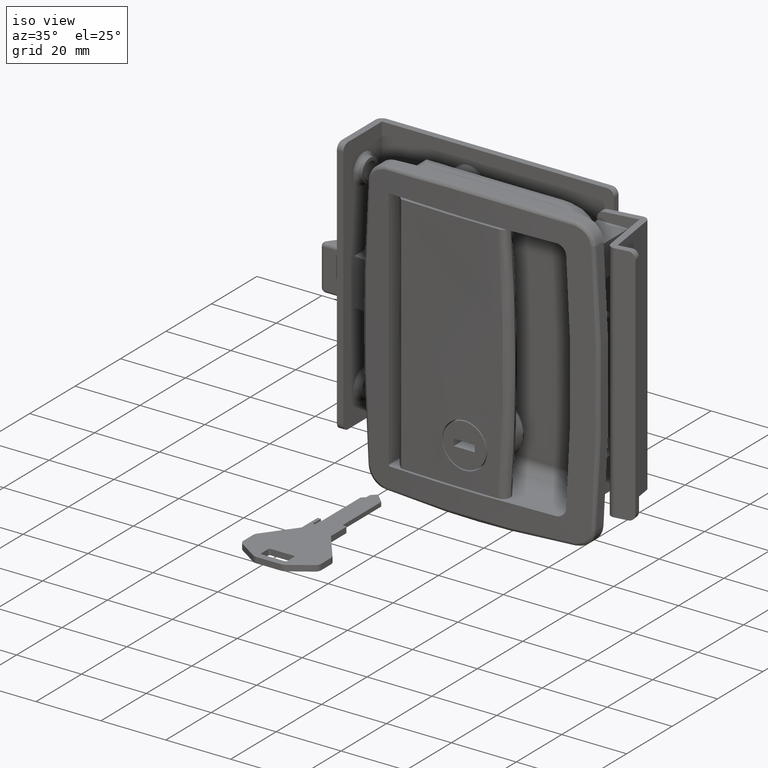
[diagram: clean part render]
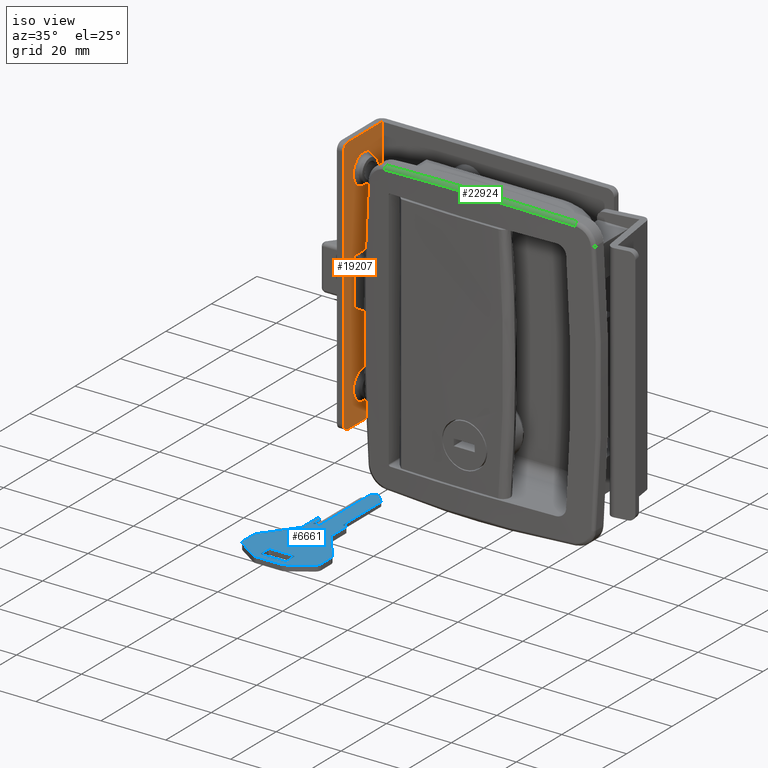
[diagram: same view with three faces highlighted in distinct colors, each labeled with its STEP entity id]
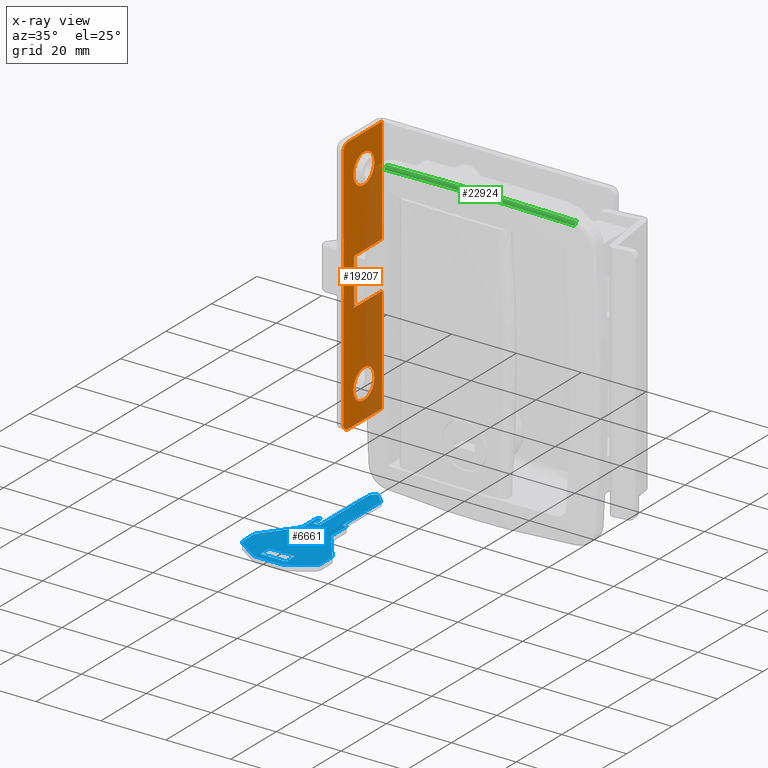
[diagram: x-ray of the same camera — body ghosted, the three highlighted faces saturated]
A machine part, iso view with three faces highlighted in distinct colors.
The next image is the same camera in x-ray (body ghosted, the three faces saturated) — at least one of them is partly hidden behind the body in this view.
Their STEP definitions:

[orange] entity #19207 — the highlighted face is a freeform B-spline surface patch.
#14870=CARTESIAN_POINT('',(2.000000000014888,-5.401452731472784,30.115598441933631));
#14871=VERTEX_POINT('',#14870);
#14885=CARTESIAN_POINT('',(2.000000000059545,-10.000000000235520,34.599999999503709));
#14886=VERTEX_POINT('',#14885);
#14887=CARTESIAN_POINT('',(2.000000000014887,-5.401452731472784,30.115598441933631));
#14888=CARTESIAN_POINT('',(2.000000000059544,-5.514181776249780,34.599999999503709));
#14889=CARTESIAN_POINT('',(2.000000000059545,-10.000000000235520,34.599999999503709));
#14897=(BOUNDED_CURVE()B_SPLINE_CURVE(2,(#14887,#14888,#14889),.UNSPECIFIED.,.F.,.U.)B_SPLINE_CURVE_WITH_KNOTS((3,3),(0.754420108471279,1.0),.UNSPECIFIED.)CURVE()GEOMETRIC_REPRESENTATION_ITEM()RATIONAL_B_SPLINE_CURVE((0.989826157136652,0.712285260377177,1.0))REPRESENTATION_ITEM(''));
#14898=EDGE_CURVE('',#14871,#14886,#14897,.T.);
#14900=CARTESIAN_POINT('',(2.000000000014888,-14.598547268998260,29.884401557612570));
#14901=VERTEX_POINT('',#14900);
#14902=CARTESIAN_POINT('',(2.000000000059545,-10.000000000235520,34.599999999503709));
#14903=CARTESIAN_POINT('',(2.000000000059545,-14.599999999966125,34.599999999503716));
#14904=CARTESIAN_POINT('',(2.000000000059545,-14.599999999966130,29.999999999773099));
#14905=CARTESIAN_POINT('',(2.000000000059545,-14.599999999966133,29.942191648839483));
#14906=CARTESIAN_POINT('',(2.000000000014888,-14.598547268998258,29.884401557612566));
#14914=(BOUNDED_CURVE()B_SPLINE_CURVE(2,(#14902,#14903,#14904,#14905,#14906),.UNSPECIFIED.,.F.,.U.)B_SPLINE_CURVE_WITH_KNOTS((3,2,3),(0.0,0.250000000000000,0.254420108471278),.UNSPECIFIED.)CURVE()GEOMETRIC_REPRESENTATION_ITEM()RATIONAL_B_SPLINE_CURVE((1.0,0.707106781186548,1.0,0.994821520809371,0.989826157136652))REPRESENTATION_ITEM(''));
#14915=EDGE_CURVE('',#14886,#14901,#14914,.T.);
#14959=CARTESIAN_POINT('',(2.000000000059545,-10.000000000235520,25.400000000042489));
#14960=VERTEX_POINT('',#14959);
#14961=CARTESIAN_POINT('',(2.000000000014888,-14.598547268998260,29.884401557612563));
#14962=CARTESIAN_POINT('',(2.000000000059545,-14.485818224221264,25.400000000042482));
#14963=CARTESIAN_POINT('',(2.000000000059545,-10.000000000235520,25.400000000042489));
#14971=(BOUNDED_CURVE()B_SPLINE_CURVE(2,(#14961,#14962,#14963),.UNSPECIFIED.,.F.,.U.)B_SPLINE_CURVE_WITH_KNOTS((3,3),(0.254420108471279,0.500000000000000),.UNSPECIFIED.)CURVE()GEOMETRIC_REPRESENTATION_ITEM()RATIONAL_B_SPLINE_CURVE((0.989826157136652,0.712285260377177,1.0))REPRESENTATION_ITEM(''));
#14972=EDGE_CURVE('',#14901,#14960,#14971,.T.);
#14974=CARTESIAN_POINT('',(2.000000000059545,-10.000000000235520,25.400000000042489));
#14975=CARTESIAN_POINT('',(2.000000000059545,-5.400000000504910,25.400000000042485));
#14976=CARTESIAN_POINT('',(2.000000000059545,-5.400000000504909,29.999999999773099));
#14977=CARTESIAN_POINT('',(2.000000000059545,-5.400000000504910,30.057808350706715));
#14978=CARTESIAN_POINT('',(2.000000000014888,-5.401452731472784,30.115598441933624));
#14986=(BOUNDED_CURVE()B_SPLINE_CURVE(2,(#14974,#14975,#14976,#14977,#14978),.UNSPECIFIED.,.F.,.U.)B_SPLINE_CURVE_WITH_KNOTS((3,2,3),(0.500000000000000,0.750000000000000,0.754420108471278),.UNSPECIFIED.)CURVE()GEOMETRIC_REPRESENTATION_ITEM()RATIONAL_B_SPLINE_CURVE((1.0,0.707106781186548,1.0,0.994821520809371,0.989826157136652))REPRESENTATION_ITEM(''));
#14987=EDGE_CURVE('',#14960,#14871,#14986,.T.);
#15027=CARTESIAN_POINT('',(2.000000000059545,-5.400000026631203,-30.000000000226951));
#15028=VERTEX_POINT('',#15027);
#15042=CARTESIAN_POINT('',(2.000000000059545,-10.000000000235520,-25.400000000496341));
#15043=VERTEX_POINT('',#15042);
#15044=CARTESIAN_POINT('',(2.000000000059545,-5.400000026631203,-30.000000000226951));
#15045=CARTESIAN_POINT('',(2.000000000059545,-5.400000000504910,-25.400000000496334));
#15046=CARTESIAN_POINT('',(2.000000000059545,-10.000000000235520,-25.400000000496341));
#15054=(BOUNDED_CURVE()B_SPLINE_CURVE(2,(#15044,#15045,#15046),.UNSPECIFIED.,.F.,.U.)B_SPLINE_CURVE_WITH_KNOTS((3,3),(0.750000000000000,1.0),.UNSPECIFIED.)CURVE()GEOMETRIC_REPRESENTATION_ITEM()RATIONAL_B_SPLINE_CURVE((1.0,0.707106781186548,1.0))REPRESENTATION_ITEM(''));
#15055=EDGE_CURVE('',#15028,#15043,#15054,.T.);
#15057=CARTESIAN_POINT('',(2.000000000059546,-14.569233510694760,-30.531135461359561));
#15058=VERTEX_POINT('',#15057);
#15059=CARTESIAN_POINT('',(2.000000000059545,-10.000000000235520,-25.400000000496341));
#15060=CARTESIAN_POINT('',(2.000000000059545,-14.599999999966125,-25.400000000496334));
#15061=CARTESIAN_POINT('',(2.000000000059545,-14.599999999966130,-30.000000000226951));
#15062=CARTESIAN_POINT('',(2.000000000059545,-14.599999999966128,-30.266458823507048));
#15063=CARTESIAN_POINT('',(2.000000000059546,-14.569233510694760,-30.531135461359565));
#15071=(BOUNDED_CURVE()B_SPLINE_CURVE(2,(#15059,#15060,#15061,#15062,#15063),.UNSPECIFIED.,.F.,.U.)B_SPLINE_CURVE_WITH_KNOTS((3,2,3),(0.0,0.250000000000000,0.270000000692351),.UNSPECIFIED.)CURVE()GEOMETRIC_REPRESENTATION_ITEM()RATIONAL_B_SPLINE_CURVE((1.0,0.707106781186548,1.0,0.976568541683784,0.956886116827945))REPRESENTATION_ITEM(''));
#15072=EDGE_CURVE('',#15043,#15058,#15071,.T.);
#15116=CARTESIAN_POINT('',(2.000000000059545,-10.000000000235520,-34.599999999957561));
#15117=VERTEX_POINT('',#15116);
#15118=CARTESIAN_POINT('',(2.000000000059545,-14.569233510694763,-30.531135461359561));
#15119=CARTESIAN_POINT('',(2.000000000059545,-14.096261806920712,-34.599999999957568));
#15120=CARTESIAN_POINT('',(2.000000000059545,-10.000000000235520,-34.599999999957561));
#15128=(BOUNDED_CURVE()B_SPLINE_CURVE(2,(#15118,#15119,#15120),.UNSPECIFIED.,.F.,.U.)B_SPLINE_CURVE_WITH_KNOTS((3,3),(0.270000000692351,0.500000000000000),.UNSPECIFIED.)CURVE()GEOMETRIC_REPRESENTATION_ITEM()RATIONAL_B_SPLINE_CURVE((0.956886116827945,0.730538239502764,1.0))REPRESENTATION_ITEM(''));
#15129=EDGE_CURVE('',#15058,#15117,#15128,.T.);
#15131=CARTESIAN_POINT('',(2.000000000059545,-10.000000000235520,-34.599999999957561));
#15132=CARTESIAN_POINT('',(2.000000000059545,-5.400000000504933,-34.599999999957568));
#15133=CARTESIAN_POINT('',(2.000000000059545,-5.400000026631203,-30.000000000226951));
#15141=(BOUNDED_CURVE()B_SPLINE_CURVE(2,(#15131,#15132,#15133),.UNSPECIFIED.,.F.,.U.)B_SPLINE_CURVE_WITH_KNOTS((3,3),(0.500000000000000,0.749999999999999),.UNSPECIFIED.)CURVE()GEOMETRIC_REPRESENTATION_ITEM()RATIONAL_B_SPLINE_CURVE((1.0,0.707106781186549,0.999999999999998))REPRESENTATION_ITEM(''));
#15142=EDGE_CURVE('',#15117,#15028,#15141,.T.);
#18462=CARTESIAN_POINT('',(2.000000000059545,-14.200000000010800,-7.200000000056770));
#18463=VERTEX_POINT('',#18462);
#18469=CARTESIAN_POINT('',(1.999999999940455,-12.199999999999720,-7.200000000058380));
#18470=VERTEX_POINT('',#18469);
#18471=CARTESIAN_POINT('',(2.000000000059545,-14.200000000010800,-7.200000000056770));
#18472=CARTESIAN_POINT('',(1.999999999940455,-12.199999999999720,-7.200000000058380));
#18473=QUASI_UNIFORM_CURVE('',1,(#18471,#18472),.UNSPECIFIED.,.F.,.U.);
#18474=EDGE_CURVE('',#18463,#18470,#18473,.T.);
#18511=CARTESIAN_POINT('',(1.999999999940495,-14.199999999989300,7.200000000050660));
#18512=VERTEX_POINT('',#18511);
#18513=CARTESIAN_POINT('',(2.000000000059545,-12.199999999999720,7.200000000050610));
#18514=VERTEX_POINT('',#18513);
#18515=CARTESIAN_POINT('',(1.999999999940495,-14.199999999989300,7.200000000050660));
#18516=CARTESIAN_POINT('',(2.000000000059545,-12.199999999999720,7.200000000050610));
#18517=QUASI_UNIFORM_CURVE('',1,(#18515,#18516),.UNSPECIFIED.,.F.,.U.);
#18518=EDGE_CURVE('',#18512,#18514,#18517,.T.);
#18569=CARTESIAN_POINT('',(1.999999999940495,-14.199999999989300,7.200000000050660));
#18570=CARTESIAN_POINT('',(2.000000000059545,-14.200000000010800,-7.200000000056770));
#18571=QUASI_UNIFORM_CURVE('',1,(#18569,#18570),.UNSPECIFIED.,.F.,.U.);
#18572=EDGE_CURVE('',#18512,#18463,#18571,.T.);
#18671=CARTESIAN_POINT('',(1.999999999940455,-1.999999999999885,7.200000000050660));
#18672=VERTEX_POINT('',#18671);
#18685=CARTESIAN_POINT('',(1.999999999940455,-1.999999999999885,-7.200000000066281));
#18686=VERTEX_POINT('',#18685);
#18706=CARTESIAN_POINT('',(1.999999999940455,-12.199999999999720,-7.200000000058380));
#18707=CARTESIAN_POINT('',(1.999999999940455,-1.999999999999885,-7.200000000066281));
#18708=QUASI_UNIFORM_CURVE('',1,(#18706,#18707),.UNSPECIFIED.,.F.,.U.);
#18709=EDGE_CURVE('',#18470,#18686,#18708,.T.);
#18762=CARTESIAN_POINT('',(2.000000000059545,-12.199999999999720,7.200000000050610));
#18763=CARTESIAN_POINT('',(1.999999999940455,-1.999999999999885,7.200000000050660));
#18764=QUASI_UNIFORM_CURVE('',1,(#18762,#18763),.UNSPECIFIED.,.F.,.U.);
#18765=EDGE_CURVE('',#18514,#18672,#18764,.T.);
#18942=CARTESIAN_POINT('',(2.000000000059545,-16.999999999999751,40.000000000094047));
#18943=VERTEX_POINT('',#18942);
#18944=CARTESIAN_POINT('',(2.000000000059545,-19.0,38.000000000094047));
#18945=VERTEX_POINT('',#18944);
#18946=CARTESIAN_POINT('',(2.000000000059545,-16.999999999999751,40.000000000094047));
#18947=CARTESIAN_POINT('',(2.000000000059545,-18.999999999999755,40.000000000094055));
#18948=CARTESIAN_POINT('',(2.000000000059545,-19.0,38.000000000094047));
#18956=(BOUNDED_CURVE()B_SPLINE_CURVE(2,(#18946,#18947,#18948),.UNSPECIFIED.,.F.,.U.)CURVE()GEOMETRIC_REPRESENTATION_ITEM()QUASI_UNIFORM_CURVE()RATIONAL_B_SPLINE_CURVE((1.0,0.707106781186548,1.0))REPRESENTATION_ITEM(''));
#18957=EDGE_CURVE('',#18943,#18945,#18956,.T.);
#19003=CARTESIAN_POINT('',(2.000000000059545,-19.0,-37.999999999905903));
#19004=VERTEX_POINT('',#19003);
#19005=CARTESIAN_POINT('',(2.000000000059545,-16.999999999999751,-39.999999999905853));
#19006=VERTEX_POINT('',#19005);
#19007=CARTESIAN_POINT('',(2.000000000059545,-19.0,-37.999999999905903));
#19008=CARTESIAN_POINT('',(2.000000000059545,-18.999999999999755,-39.999999999905853));
#19009=CARTESIAN_POINT('',(2.000000000059545,-16.999999999999751,-39.999999999905853));
#19017=(BOUNDED_CURVE()B_SPLINE_CURVE(2,(#19007,#19008,#19009),.UNSPECIFIED.,.F.,.U.)CURVE()GEOMETRIC_REPRESENTATION_ITEM()QUASI_UNIFORM_CURVE()RATIONAL_B_SPLINE_CURVE((1.0,0.707106781186548,1.0))REPRESENTATION_ITEM(''));
#19018=EDGE_CURVE('',#19004,#19006,#19017,.T.);
#19063=CARTESIAN_POINT('',(2.000000000059545,-1.999999999999885,-39.999999999905903));
#19064=VERTEX_POINT('',#19063);
#19070=CARTESIAN_POINT('',(2.000000000059545,-1.999999999999885,-39.999999999905903));
#19071=CARTESIAN_POINT('',(2.000000000059545,-16.999999999999751,-39.999999999905853));
#19072=QUASI_UNIFORM_CURVE('',1,(#19070,#19071),.UNSPECIFIED.,.F.,.U.);
#19073=EDGE_CURVE('',#19064,#19006,#19072,.T.);
#19104=CARTESIAN_POINT('',(2.000000000059545,-1.999999999999885,40.000000000094047));
#19105=VERTEX_POINT('',#19104);
#19140=CARTESIAN_POINT('',(2.000000000059545,-1.999999999999885,40.000000000094047));
#19141=CARTESIAN_POINT('',(2.000000000059545,-16.999999999999751,40.000000000094047));
#19142=QUASI_UNIFORM_CURVE('',1,(#19140,#19141),.UNSPECIFIED.,.F.,.U.);
#19143=EDGE_CURVE('',#19105,#18943,#19142,.T.);
#19159=CARTESIAN_POINT('',(2.000000000059545,-19.0,38.000000000094047));
#19160=CARTESIAN_POINT('',(2.000000000059545,-19.0,-37.999999999905903));
#19161=QUASI_UNIFORM_CURVE('',1,(#19159,#19160),.UNSPECIFIED.,.F.,.U.);
#19162=EDGE_CURVE('',#18945,#19004,#19161,.T.);
#19168=CARTESIAN_POINT('',(2.000000000059545,-19.849149967050710,43.995999845038533));
#19169=CARTESIAN_POINT('',(2.000000000059545,-19.849149967050710,-43.996001990617593));
#19170=CARTESIAN_POINT('',(2.000000000059545,-1.150849576973646,43.995999845038533));
#19171=CARTESIAN_POINT('',(2.000000000059545,-1.150849576973646,-43.996001990617593));
#19172=B_SPLINE_SURFACE_WITH_KNOTS('',1,1,((#19168,#19170),(#19169,#19171)),.UNSPECIFIED.,.F.,.F.,.U.,(2,2),(2,2),(0.0,87.992001835656112),(0.0,18.698300390077058),.UNSPECIFIED.);
#19173=ORIENTED_EDGE('',*,*,#18572,.F.);
#19174=ORIENTED_EDGE('',*,*,#18518,.T.);
#19175=ORIENTED_EDGE('',*,*,#18765,.T.);
#19176=CARTESIAN_POINT('',(2.000000000059545,-1.999999999999885,40.000000000094047));
#19177=CARTESIAN_POINT('',(1.999999999940455,-1.999999999999885,7.200000000050660));
#19178=QUASI_UNIFORM_CURVE('',1,(#19176,#19177),.UNSPECIFIED.,.F.,.U.);
#19179=EDGE_CURVE('',#19105,#18672,#19178,.T.);
#19180=ORIENTED_EDGE('',*,*,#19179,.F.);
#19181=ORIENTED_EDGE('',*,*,#19143,.T.);
#19182=ORIENTED_EDGE('',*,*,#18957,.T.);
#19183=ORIENTED_EDGE('',*,*,#19162,.T.);
#19184=ORIENTED_EDGE('',*,*,#19018,.T.);
#19185=ORIENTED_EDGE('',*,*,#19073,.F.);
#19186=CARTESIAN_POINT('',(1.999999999940455,-1.999999999999885,-7.200000000066281));
#19187=CARTESIAN_POINT('',(2.000000000059545,-1.999999999999885,-39.999999999905903));
#19188=QUASI_UNIFORM_CURVE('',1,(#19186,#19187),.UNSPECIFIED.,.F.,.U.);
#19189=EDGE_CURVE('',#18686,#19064,#19188,.T.);
#19190=ORIENTED_EDGE('',*,*,#19189,.F.);
#19191=ORIENTED_EDGE('',*,*,#18709,.F.);
#19192=ORIENTED_EDGE('',*,*,#18474,.F.);
#19193=EDGE_LOOP('',(#19173,#19174,#19175,#19180,#19181,#19182,#19183,#19184,#19185,#19190,#19191,#19192));
#19194=FACE_OUTER_BOUND('',#19193,.T.);
#19195=ORIENTED_EDGE('',*,*,#15142,.F.);
#19196=ORIENTED_EDGE('',*,*,#15129,.F.);
#19197=ORIENTED_EDGE('',*,*,#15072,.F.);
#19198=ORIENTED_EDGE('',*,*,#15055,.F.);
#19199=EDGE_LOOP('',(#19195,#19196,#19197,#19198));
#19200=FACE_BOUND('',#19199,.T.);
#19201=ORIENTED_EDGE('',*,*,#14987,.F.);
#19202=ORIENTED_EDGE('',*,*,#14972,.F.);
#19203=ORIENTED_EDGE('',*,*,#14915,.F.);
#19204=ORIENTED_EDGE('',*,*,#14898,.F.);
#19205=EDGE_LOOP('',(#19201,#19202,#19203,#19204));
#19206=FACE_BOUND('',#19205,.T.);
#19207=ADVANCED_FACE('',(#19194,#19200,#19206),#19172,.T.);

[blue] entity #6661 — the highlighted face is a freeform B-spline surface patch.
#5857=CARTESIAN_POINT('',(46.000000000371202,44.749999999533102,-24.600000000333001));
#5858=VERTEX_POINT('',#5857);
#5874=CARTESIAN_POINT('',(48.000000000371102,44.749999999533102,-24.600000000333001));
#5875=VERTEX_POINT('',#5874);
#5876=CARTESIAN_POINT('',(46.000000000371202,44.749999999533102,-24.600000000333001));
#5877=CARTESIAN_POINT('',(48.000000000371102,44.749999999533102,-24.600000000333001));
#5878=QUASI_UNIFORM_CURVE('',1,(#5876,#5877),.UNSPECIFIED.,.F.,.U.);
#5879=EDGE_CURVE('',#5858,#5875,#5878,.T.);
#5951=CARTESIAN_POINT('',(46.000000000372097,48.249999999536300,-24.600000000332901));
#5952=VERTEX_POINT('',#5951);
#5953=CARTESIAN_POINT('',(46.000000000372097,48.249999999536300,-24.600000000332901));
#5954=CARTESIAN_POINT('',(46.000000000371202,44.749999999533102,-24.600000000333001));
#5955=QUASI_UNIFORM_CURVE('',1,(#5953,#5954),.UNSPECIFIED.,.F.,.U.);
#5956=EDGE_CURVE('',#5952,#5858,#5955,.T.);
#5975=CARTESIAN_POINT('',(48.000000000371102,66.957106780720807,-24.600000000333001));
#5976=VERTEX_POINT('',#5975);
#5977=CARTESIAN_POINT('',(48.000000000371102,44.749999999533102,-24.600000000333001));
#5978=CARTESIAN_POINT('',(48.000000000371102,66.957106780720807,-24.600000000333001));
#5979=QUASI_UNIFORM_CURVE('',1,(#5977,#5978),.UNSPECIFIED.,.F.,.U.);
#5980=EDGE_CURVE('',#5875,#5976,#5979,.T.);
#6326=CARTESIAN_POINT('',(36.301200046888042,70.647599906497987,-24.600000000332951));
#6327=CARTESIAN_POINT('',(62.698800597585013,70.647599906497987,-24.600000000332951));
#6328=CARTESIAN_POINT('',(36.301200046888042,17.852398805109260,-24.600000000332951));
#6329=CARTESIAN_POINT('',(62.698800597585013,17.852398805109260,-24.600000000332951));
#6330=B_SPLINE_SURFACE_WITH_KNOTS('',1,1,((#6326,#6328),(#6327,#6329)),.UNSPECIFIED.,.F.,.F.,.U.,(2,2),(2,2),(0.0,26.397600550696961),(0.0,52.795201101388727),.UNSPECIFIED.);
#6331=ORIENTED_EDGE('',*,*,#5980,.F.);
#6332=ORIENTED_EDGE('',*,*,#5879,.F.);
#6333=ORIENTED_EDGE('',*,*,#5956,.F.);
#6334=CARTESIAN_POINT('',(45.300000000371398,48.249999999536101,-24.600000000332901));
#6335=VERTEX_POINT('',#6334);
#6336=CARTESIAN_POINT('',(45.300000000371398,48.249999999536101,-24.600000000332901));
#6337=CARTESIAN_POINT('',(46.000000000372097,48.249999999536300,-24.600000000332901));
#6338=QUASI_UNIFORM_CURVE('',1,(#6336,#6337),.UNSPECIFIED.,.F.,.U.);
#6339=EDGE_CURVE('',#6335,#5952,#6338,.T.);
#6340=ORIENTED_EDGE('',*,*,#6339,.F.);
#6341=CARTESIAN_POINT('',(45.000000000371500,47.949999999536203,-24.600000000332901));
#6342=VERTEX_POINT('',#6341);
#6343=CARTESIAN_POINT('',(45.300000000371398,48.249999999536101,-24.600000000332901));
#6344=CARTESIAN_POINT('',(45.000000000371394,48.249999999536101,-24.600000000332908));
#6345=CARTESIAN_POINT('',(45.000000000371500,47.949999999536203,-24.600000000332901));
#6353=(BOUNDED_CURVE()B_SPLINE_CURVE(2,(#6343,#6344,#6345),.UNSPECIFIED.,.F.,.U.)CURVE()GEOMETRIC_REPRESENTATION_ITEM()QUASI_UNIFORM_CURVE()RATIONAL_B_SPLINE_CURVE((1.0,0.707106781186547,1.0))REPRESENTATION_ITEM(''));
#6354=EDGE_CURVE('',#6335,#6342,#6353,.T.);
#6355=ORIENTED_EDGE('',*,*,#6354,.T.);
#6356=CARTESIAN_POINT('',(45.000000000371500,41.249999999536307,-24.600000000332901));
#6357=VERTEX_POINT('',#6356);
#6358=CARTESIAN_POINT('',(45.000000000371500,41.249999999536307,-24.600000000332901));
#6359=CARTESIAN_POINT('',(45.000000000371500,47.949999999536203,-24.600000000332901));
#6360=QUASI_UNIFORM_CURVE('',1,(#6358,#6359),.UNSPECIFIED.,.F.,.U.);
#6361=EDGE_CURVE('',#6357,#6342,#6360,.T.);
#6362=ORIENTED_EDGE('',*,*,#6361,.F.);
#6363=CARTESIAN_POINT('',(37.900000000371513,31.783333332869550,-24.600000000332901));
#6364=VERTEX_POINT('',#6363);
#6365=CARTESIAN_POINT('',(37.900000000371513,31.783333332869550,-24.600000000332901));
#6366=CARTESIAN_POINT('',(45.000000000371500,41.249999999536307,-24.600000000332901));
#6367=QUASI_UNIFORM_CURVE('',1,(#6365,#6366),.UNSPECIFIED.,.F.,.U.);
#6368=EDGE_CURVE('',#6364,#6357,#6367,.T.);
#6369=ORIENTED_EDGE('',*,*,#6368,.F.);
#6370=CARTESIAN_POINT('',(37.500000000371386,30.583333332869451,-24.600000000332901));
#6371=VERTEX_POINT('',#6370);
#6372=CARTESIAN_POINT('',(37.900000000371527,31.783333332869532,-24.600000000332901));
#6373=CARTESIAN_POINT('',(37.500000000371550,31.249999999536204,-24.600000000332908));
#6374=CARTESIAN_POINT('',(37.500000000371386,30.583333332869451,-24.600000000332901));
#6382=(BOUNDED_CURVE()B_SPLINE_CURVE(2,(#6372,#6373,#6374),.UNSPECIFIED.,.F.,.U.)CURVE()GEOMETRIC_REPRESENTATION_ITEM()QUASI_UNIFORM_CURVE()RATIONAL_B_SPLINE_CURVE((1.0,0.948683298050516,1.0))REPRESENTATION_ITEM(''));
#6383=EDGE_CURVE('',#6364,#6371,#6382,.T.);
#6384=ORIENTED_EDGE('',*,*,#6383,.T.);
#6385=CARTESIAN_POINT('',(37.500000000371550,26.320367516512199,-24.600000000332901));
#6386=VERTEX_POINT('',#6385);
#6387=CARTESIAN_POINT('',(37.500000000371550,26.320367516512199,-24.600000000332901));
#6388=CARTESIAN_POINT('',(37.500000000371386,30.583333332869451,-24.600000000332901));
#6389=QUASI_UNIFORM_CURVE('',1,(#6387,#6388),.UNSPECIFIED.,.F.,.U.);
#6390=EDGE_CURVE('',#6386,#6371,#6389,.T.);
#6391=ORIENTED_EDGE('',*,*,#6390,.F.);
#6392=CARTESIAN_POINT('',(38.390599607920947,24.656266927836601,-24.600000000332901));
#6393=VERTEX_POINT('',#6392);
#6394=CARTESIAN_POINT('',(37.500000000371550,26.320367516512199,-24.600000000332901));
#6395=CARTESIAN_POINT('',(37.500000000371557,25.249999999536321,-24.600000000332894));
#6396=CARTESIAN_POINT('',(38.390599607920947,24.656266927836612,-24.600000000332901));
#6404=(BOUNDED_CURVE()B_SPLINE_CURVE(2,(#6394,#6395,#6396),.UNSPECIFIED.,.F.,.U.)CURVE()GEOMETRIC_REPRESENTATION_ITEM()QUASI_UNIFORM_CURVE()RATIONAL_B_SPLINE_CURVE((1.0,0.881674598767964,1.0))REPRESENTATION_ITEM(''));
#6405=EDGE_CURVE('',#6386,#6393,#6404,.T.);
#6406=ORIENTED_EDGE('',*,*,#6405,.T.);
#6407=CARTESIAN_POINT('',(44.496150883384999,20.585899410860350,-24.600000000332901));
#6408=VERTEX_POINT('',#6407);
#6409=CARTESIAN_POINT('',(44.496150883384999,20.585899410860350,-24.600000000332901));
#6410=CARTESIAN_POINT('',(38.390599607920947,24.656266927836601,-24.600000000332901));
#6411=QUASI_UNIFORM_CURVE('',1,(#6409,#6410),.UNSPECIFIED.,.F.,.U.);
#6412=EDGE_CURVE('',#6408,#6393,#6411,.T.);
#6413=ORIENTED_EDGE('',*,*,#6412,.F.);
#6414=CARTESIAN_POINT('',(45.605551275835403,20.249999999536300,-24.600000000332901));
#6415=VERTEX_POINT('',#6414);
#6416=CARTESIAN_POINT('',(44.496150883384992,20.585899410860328,-24.600000000332901));
#6417=CARTESIAN_POINT('',(45.000000000371443,20.249999999536040,-24.600000000332901));
#6418=CARTESIAN_POINT('',(45.605551275835403,20.249999999536300,-24.600000000332901));
#6426=(BOUNDED_CURVE()B_SPLINE_CURVE(2,(#6416,#6417,#6418),.UNSPECIFIED.,.F.,.U.)CURVE()GEOMETRIC_REPRESENTATION_ITEM()QUASI_UNIFORM_CURVE()RATIONAL_B_SPLINE_CURVE((1.0,0.957092026489057,1.0))REPRESENTATION_ITEM(''));
#6427=EDGE_CURVE('',#6408,#6415,#6426,.T.);
#6428=ORIENTED_EDGE('',*,*,#6427,.T.);
#6429=CARTESIAN_POINT('',(53.394448724907399,20.249999999536051,-24.600000000332901));
#6430=VERTEX_POINT('',#6429);
#6431=CARTESIAN_POINT('',(53.394448724907399,20.249999999536051,-24.600000000332901));
#6432=CARTESIAN_POINT('',(45.605551275835403,20.249999999536300,-24.600000000332901));
#6433=QUASI_UNIFORM_CURVE('',1,(#6431,#6432),.UNSPECIFIED.,.F.,.U.);
#6434=EDGE_CURVE('',#6430,#6415,#6433,.T.);
#6435=ORIENTED_EDGE('',*,*,#6434,.F.);
#6436=CARTESIAN_POINT('',(54.503849117358001,20.585899410860549,-24.600000000332901));
#6437=VERTEX_POINT('',#6436);
#6438=CARTESIAN_POINT('',(53.394448724907399,20.249999999536051,-24.600000000332901));
#6439=CARTESIAN_POINT('',(54.000000000371514,20.249999999536048,-24.600000000332898));
#6440=CARTESIAN_POINT('',(54.503849117358037,20.585899410860488,-24.600000000332901));
#6448=(BOUNDED_CURVE()B_SPLINE_CURVE(2,(#6438,#6439,#6440),.UNSPECIFIED.,.F.,.U.)CURVE()GEOMETRIC_REPRESENTATION_ITEM()QUASI_UNIFORM_CURVE()RATIONAL_B_SPLINE_CURVE((1.0,0.957092026489037,1.0))REPRESENTATION_ITEM(''));
#6449=EDGE_CURVE('',#6430,#6437,#6448,.T.);
#6450=ORIENTED_EDGE('',*,*,#6449,.T.);
#6451=CARTESIAN_POINT('',(60.609400392822003,24.656266927836501,-24.600000000332901));
#6452=VERTEX_POINT('',#6451);
#6453=CARTESIAN_POINT('',(60.609400392822003,24.656266927836501,-24.600000000332901));
#6454=CARTESIAN_POINT('',(54.503849117358001,20.585899410860549,-24.600000000332901));
#6455=QUASI_UNIFORM_CURVE('',1,(#6453,#6454),.UNSPECIFIED.,.F.,.U.);
#6456=EDGE_CURVE('',#6452,#6437,#6455,.T.);
#6457=ORIENTED_EDGE('',*,*,#6456,.F.);
#6458=CARTESIAN_POINT('',(61.500000000371386,26.320367516512199,-24.600000000332901));
#6459=VERTEX_POINT('',#6458);
#6460=CARTESIAN_POINT('',(60.609400392821982,24.656266927836530,-24.600000000332901));
#6461=CARTESIAN_POINT('',(61.500000000371493,25.249999999536225,-24.600000000332898));
#6462=CARTESIAN_POINT('',(61.500000000371500,26.320367516512199,-24.600000000332901));
#6470=(BOUNDED_CURVE()B_SPLINE_CURVE(2,(#6460,#6461,#6462),.UNSPECIFIED.,.F.,.U.)CURVE()GEOMETRIC_REPRESENTATION_ITEM()QUASI_UNIFORM_CURVE()RATIONAL_B_SPLINE_CURVE((1.0,0.881674598767947,1.0))REPRESENTATION_ITEM(''));
#6471=EDGE_CURVE('',#6452,#6459,#6470,.T.);
#6472=ORIENTED_EDGE('',*,*,#6471,.T.);
#6473=CARTESIAN_POINT('',(61.500000000371500,30.583333332869351,-24.600000000332901));
#6474=VERTEX_POINT('',#6473);
#6475=CARTESIAN_POINT('',(61.500000000371500,30.583333332869351,-24.600000000332901));
#6476=CARTESIAN_POINT('',(61.500000000371386,26.320367516512199,-24.600000000332901));
#6477=QUASI_UNIFORM_CURVE('',1,(#6475,#6476),.UNSPECIFIED.,.F.,.U.);
#6478=EDGE_CURVE('',#6474,#6459,#6477,.T.);
#6479=ORIENTED_EDGE('',*,*,#6478,.F.);
#6480=CARTESIAN_POINT('',(61.100000000371303,31.783333332869599,-24.600000000332901));
#6481=VERTEX_POINT('',#6480);
#6482=CARTESIAN_POINT('',(61.500000000371500,30.583333332869351,-24.600000000332901));
#6483=CARTESIAN_POINT('',(61.500000000371507,31.249999999536197,-24.600000000332898));
#6484=CARTESIAN_POINT('',(61.100000000371310,31.783333332869599,-24.600000000332901));
#6492=(BOUNDED_CURVE()B_SPLINE_CURVE(2,(#6482,#6483,#6484),.UNSPECIFIED.,.F.,.U.)CURVE()GEOMETRIC_REPRESENTATION_ITEM()QUASI_UNIFORM_CURVE()RATIONAL_B_SPLINE_CURVE((1.0,0.948683298050488,1.0))REPRESENTATION_ITEM(''));
#6493=EDGE_CURVE('',#6474,#6481,#6492,.T.);
#6494=ORIENTED_EDGE('',*,*,#6493,.T.);
#6495=CARTESIAN_POINT('',(54.000000000371386,41.249999999536307,-24.600000000332901));
#6496=VERTEX_POINT('',#6495);
#6497=CARTESIAN_POINT('',(54.000000000371386,41.249999999536307,-24.600000000332901));
#6498=CARTESIAN_POINT('',(61.100000000371303,31.783333332869599,-24.600000000332901));
#6499=QUASI_UNIFORM_CURVE('',1,(#6497,#6498),.UNSPECIFIED.,.F.,.U.);
#6500=EDGE_CURVE('',#6496,#6481,#6499,.T.);
#6501=ORIENTED_EDGE('',*,*,#6500,.F.);
#6502=CARTESIAN_POINT('',(54.000000000371386,47.949999999536097,-24.600000000332901));
#6503=VERTEX_POINT('',#6502);
#6504=CARTESIAN_POINT('',(54.000000000371386,47.949999999536097,-24.600000000332901));
#6505=CARTESIAN_POINT('',(54.000000000371386,41.249999999536307,-24.600000000332901));
#6506=QUASI_UNIFORM_CURVE('',1,(#6504,#6505),.UNSPECIFIED.,.F.,.U.);
#6507=EDGE_CURVE('',#6503,#6496,#6506,.T.);
#6508=ORIENTED_EDGE('',*,*,#6507,.F.);
#6509=CARTESIAN_POINT('',(53.700000000371197,48.249999999536300,-24.600000000332901));
#6510=VERTEX_POINT('',#6509);
#6511=CARTESIAN_POINT('',(54.000000000371386,47.949999999536097,-24.600000000332901));
#6512=CARTESIAN_POINT('',(54.000000000371401,48.074264068248084,-24.600000000332898));
#6513=CARTESIAN_POINT('',(53.912132034727293,48.162132033892142,-24.600000000332901));
#6514=CARTESIAN_POINT('',(53.824264069083178,48.249999999536179,-24.600000000332898));
#6515=CARTESIAN_POINT('',(53.700000000371197,48.249999999536300,-24.600000000332901));
#6523=(BOUNDED_CURVE()B_SPLINE_CURVE(2,(#6511,#6512,#6513,#6514,#6515),.UNSPECIFIED.,.F.,.U.)B_SPLINE_CURVE_WITH_KNOTS((3,2,3),(0.0,0.500000000000000,1.0),.UNSPECIFIED.)CURVE()GEOMETRIC_REPRESENTATION_ITEM()RATIONAL_B_SPLINE_CURVE((1.0,0.923879532511225,1.0,0.923879532511225,1.0))REPRESENTATION_ITEM(''));
#6524=EDGE_CURVE('',#6503,#6510,#6523,.T.);
#6525=ORIENTED_EDGE('',*,*,#6524,.T.);
#6526=CARTESIAN_POINT('',(52.700000000371197,48.249999999533102,-24.600000000332901));
#6527=VERTEX_POINT('',#6526);
#6528=CARTESIAN_POINT('',(52.700000000371197,48.249999999533102,-24.600000000332901));
#6529=CARTESIAN_POINT('',(53.700000000371197,48.249999999536300,-24.600000000332901));
#6530=QUASI_UNIFORM_CURVE('',1,(#6528,#6529),.UNSPECIFIED.,.F.,.U.);
#6531=EDGE_CURVE('',#6527,#6510,#6530,.T.);
#6532=ORIENTED_EDGE('',*,*,#6531,.F.);
#6533=CARTESIAN_POINT('',(52.700000000376100,65.257106780718800,-24.600000000332901));
#6534=VERTEX_POINT('',#6533);
#6535=CARTESIAN_POINT('',(52.700000000376100,65.257106780718800,-24.600000000332901));
#6536=CARTESIAN_POINT('',(52.700000000371197,48.249999999533102,-24.600000000332901));
#6537=QUASI_UNIFORM_CURVE('',1,(#6535,#6536),.UNSPECIFIED.,.F.,.U.);
#6538=EDGE_CURVE('',#6534,#6527,#6537,.T.);
#6539=ORIENTED_EDGE('',*,*,#6538,.F.);
#6540=CARTESIAN_POINT('',(49.853553390964301,68.103553390126592,-24.600000000332901));
#6541=VERTEX_POINT('',#6540);
#6542=CARTESIAN_POINT('',(49.853553390964301,68.103553390126592,-24.600000000332901));
#6543=CARTESIAN_POINT('',(52.700000000376100,65.257106780718800,-24.600000000332901));
#6544=QUASI_UNIFORM_CURVE('',1,(#6542,#6543),.UNSPECIFIED.,.F.,.U.);
#6545=EDGE_CURVE('',#6541,#6534,#6544,.T.);
#6546=ORIENTED_EDGE('',*,*,#6545,.F.);
#6547=CARTESIAN_POINT('',(49.146446609778486,68.103553390126905,-24.600000000332901));
#6548=VERTEX_POINT('',#6547);
#6549=CARTESIAN_POINT('',(49.853553390964322,68.103553390126621,-24.600000000332901));
#6550=CARTESIAN_POINT('',(49.500000000371557,68.457106780718902,-24.600000000332905));
#6551=CARTESIAN_POINT('',(49.146446609778522,68.103553390126876,-24.600000000332901));
#6559=(BOUNDED_CURVE()B_SPLINE_CURVE(2,(#6549,#6550,#6551),.UNSPECIFIED.,.F.,.U.)CURVE()GEOMETRIC_REPRESENTATION_ITEM()QUASI_UNIFORM_CURVE()RATIONAL_B_SPLINE_CURVE((1.0,0.707106781187294,1.0))REPRESENTATION_ITEM(''));
#6560=EDGE_CURVE('',#6541,#6548,#6559,.T.);
#6561=ORIENTED_EDGE('',*,*,#6560,.T.);
#6562=CARTESIAN_POINT('',(48.000000000371102,66.957106780720807,-24.600000000333001));
#6563=CARTESIAN_POINT('',(49.146446609778486,68.103553390126905,-24.600000000332901));
#6564=QUASI_UNIFORM_CURVE('',1,(#6562,#6563),.UNSPECIFIED.,.F.,.U.);
#6565=EDGE_CURVE('',#5976,#6548,#6564,.T.);
#6566=ORIENTED_EDGE('',*,*,#6565,.F.);
#6567=EDGE_LOOP('',(#6331,#6332,#6333,#6340,#6355,#6362,#6369,#6384,#6391,#6406,#6413,#6428,#6435,#6450,#6457,#6472,#6479,#6494,#6501,#6508,#6525,#6532,#6539,#6546,#6561,#6566));
#6568=FACE_OUTER_BOUND('',#6567,.T.);
#6569=CARTESIAN_POINT('',(45.500000000371301,22.749999999536051,-24.600000000332901));
#6570=VERTEX_POINT('',#6569);
#6571=CARTESIAN_POINT('',(45.500000000371500,25.749999999536200,-24.600000000332901));
#6572=VERTEX_POINT('',#6571);
#6573=CARTESIAN_POINT('',(45.500000000371301,22.749999999536051,-24.600000000332901));
#6574=CARTESIAN_POINT('',(45.500000000371500,25.749999999536200,-24.600000000332901));
#6575=QUASI_UNIFORM_CURVE('',1,(#6573,#6574),.UNSPECIFIED.,.F.,.U.);
#6576=EDGE_CURVE('',#6570,#6572,#6575,.T.);
#6577=ORIENTED_EDGE('',*,*,#6576,.T.);
#6578=CARTESIAN_POINT('',(46.000000000371500,26.249999999536200,-24.600000000332901));
#6579=VERTEX_POINT('',#6578);
#6580=CARTESIAN_POINT('',(46.000000000371500,26.249999999536200,-24.600000000332901));
#6581=CARTESIAN_POINT('',(45.500000000371486,26.249999999536200,-24.600000000332905));
#6582=CARTESIAN_POINT('',(45.500000000371500,25.749999999536200,-24.600000000332901));
#6590=(BOUNDED_CURVE()B_SPLINE_CURVE(2,(#6580,#6581,#6582),.UNSPECIFIED.,.F.,.U.)CURVE()GEOMETRIC_REPRESENTATION_ITEM()QUASI_UNIFORM_CURVE()RATIONAL_B_SPLINE_CURVE((1.0,0.707106781186548,1.0))REPRESENTATION_ITEM(''));
#6591=EDGE_CURVE('',#6579,#6572,#6590,.T.);
#6592=ORIENTED_EDGE('',*,*,#6591,.F.);
#6593=CARTESIAN_POINT('',(53.000000000371386,26.249999999536200,-24.600000000332901));
#6594=VERTEX_POINT('',#6593);
#6595=CARTESIAN_POINT('',(46.000000000371500,26.249999999536200,-24.600000000332901));
#6596=CARTESIAN_POINT('',(53.000000000371386,26.249999999536200,-24.600000000332901));
#6597=QUASI_UNIFORM_CURVE('',1,(#6595,#6596),.UNSPECIFIED.,.F.,.U.);
#6598=EDGE_CURVE('',#6579,#6594,#6597,.T.);
#6599=ORIENTED_EDGE('',*,*,#6598,.T.);
#6600=CARTESIAN_POINT('',(53.500000000371500,25.749999999536200,-24.600000000332901));
#6601=VERTEX_POINT('',#6600);
#6602=CARTESIAN_POINT('',(53.500000000371500,25.749999999536200,-24.600000000332901));
#6603=CARTESIAN_POINT('',(53.500000000371500,25.957106780722775,-24.600000000332898));
#6604=CARTESIAN_POINT('',(53.353553390964741,26.103553390129509,-24.600000000332901));
#6605=CARTESIAN_POINT('',(53.207106781557975,26.249999999536247,-24.600000000332898));
#6606=CARTESIAN_POINT('',(53.000000000371386,26.249999999536200,-24.600000000332901));
#6614=(BOUNDED_CURVE()B_SPLINE_CURVE(2,(#6602,#6603,#6604,#6605,#6606),.UNSPECIFIED.,.F.,.U.)B_SPLINE_CURVE_WITH_KNOTS((3,2,3),(0.0,0.500000000000000,1.0),.UNSPECIFIED.)CURVE()GEOMETRIC_REPRESENTATION_ITEM()RATIONAL_B_SPLINE_CURVE((1.0,0.923879532511267,1.0,0.923879532511267,1.0))REPRESENTATION_ITEM(''));
#6615=EDGE_CURVE('',#6601,#6594,#6614,.T.);
#6616=ORIENTED_EDGE('',*,*,#6615,.F.);
#6617=CARTESIAN_POINT('',(53.500000000371301,22.749999999536051,-24.600000000332901));
#6618=VERTEX_POINT('',#6617);
#6619=CARTESIAN_POINT('',(53.500000000371500,25.749999999536200,-24.600000000332901));
#6620=CARTESIAN_POINT('',(53.500000000371301,22.749999999536051,-24.600000000332901));
#6621=QUASI_UNIFORM_CURVE('',1,(#6619,#6620),.UNSPECIFIED.,.F.,.U.);
#6622=EDGE_CURVE('',#6601,#6618,#6621,.T.);
#6623=ORIENTED_EDGE('',*,*,#6622,.T.);
#6624=CARTESIAN_POINT('',(53.000000000371500,22.249999999536051,-24.600000000332901));
#6625=VERTEX_POINT('',#6624);
#6626=CARTESIAN_POINT('',(53.000000000371500,22.249999999536051,-24.600000000332901));
#6627=CARTESIAN_POINT('',(53.500000000371493,22.249999999536048,-24.600000000332905));
#6628=CARTESIAN_POINT('',(53.500000000371301,22.749999999536051,-24.600000000332901));
#6636=(BOUNDED_CURVE()B_SPLINE_CURVE(2,(#6626,#6627,#6628),.UNSPECIFIED.,.F.,.U.)CURVE()GEOMETRIC_REPRESENTATION_ITEM()QUASI_UNIFORM_CURVE()RATIONAL_B_SPLINE_CURVE((1.0,0.707106781186548,1.0))REPRESENTATION_ITEM(''));
#6637=EDGE_CURVE('',#6625,#6618,#6636,.T.);
#6638=ORIENTED_EDGE('',*,*,#6637,.F.);
#6639=CARTESIAN_POINT('',(46.000000000371301,22.249999999536300,-24.600000000332901));
#6640=VERTEX_POINT('',#6639);
#6641=CARTESIAN_POINT('',(53.000000000371500,22.249999999536051,-24.600000000332901));
#6642=CARTESIAN_POINT('',(46.000000000371301,22.249999999536300,-24.600000000332901));
#6643=QUASI_UNIFORM_CURVE('',1,(#6641,#6642),.UNSPECIFIED.,.F.,.U.);
#6644=EDGE_CURVE('',#6625,#6640,#6643,.T.);
#6645=ORIENTED_EDGE('',*,*,#6644,.T.);
#6646=CARTESIAN_POINT('',(45.500000000371301,22.749999999536051,-24.600000000332901));
#6647=CARTESIAN_POINT('',(45.500000000371301,22.249999999536048,-24.600000000332905));
#6648=CARTESIAN_POINT('',(46.000000000371301,22.249999999536300,-24.600000000332901));
#6656=(BOUNDED_CURVE()B_SPLINE_CURVE(2,(#6646,#6647,#6648),.UNSPECIFIED.,.F.,.U.)CURVE()GEOMETRIC_REPRESENTATION_ITEM()QUASI_UNIFORM_CURVE()RATIONAL_B_SPLINE_CURVE((1.0,0.707106781186548,1.0))REPRESENTATION_ITEM(''));
#6657=EDGE_CURVE('',#6570,#6640,#6656,.T.);
#6658=ORIENTED_EDGE('',*,*,#6657,.F.);
#6659=EDGE_LOOP('',(#6577,#6592,#6599,#6616,#6623,#6638,#6645,#6658));
#6660=FACE_BOUND('',#6659,.T.);
#6661=ADVANCED_FACE('',(#6568,#6660),#6330,.F.);

[green] entity #22924 — the highlighted face is a freeform B-spline surface patch.
#22770=CARTESIAN_POINT('',(82.824502115653402,-31.534070772551200,45.139332827553602));
#22771=VERTEX_POINT('',#22770);
#22809=CARTESIAN_POINT('',(82.831791946820204,-32.531894439331253,44.141054161898047));
#22810=VERTEX_POINT('',#22809);
#22811=CARTESIAN_POINT('',(82.824502115653416,-31.534070772551200,45.139332827553488));
#22812=CARTESIAN_POINT('',(82.889960995205456,-32.528050474275680,45.135487109683439));
#22813=CARTESIAN_POINT('',(82.831791946820175,-32.531894439331253,44.141054161898097));
#22821=(BOUNDED_CURVE()B_SPLINE_CURVE(2,(#22811,#22812,#22813),.UNSPECIFIED.,.F.,.U.)CURVE()GEOMETRIC_REPRESENTATION_ITEM()QUASI_UNIFORM_CURVE()RATIONAL_B_SPLINE_CURVE((1.0,0.708472740137626,1.0))REPRESENTATION_ITEM(''));
#22822=EDGE_CURVE('',#22771,#22810,#22821,.T.);
#22862=CARTESIAN_POINT('',(24.168208053473482,-32.531894439257030,44.141054161898197));
#22863=CARTESIAN_POINT('',(33.945457909838019,-33.178001051487541,44.714177582921423));
#22864=CARTESIAN_POINT('',(43.722736017916489,-33.499999999993122,44.999999999857003));
#22865=CARTESIAN_POINT('',(63.277263982374727,-33.500000000017863,44.999999999857003));
#22866=CARTESIAN_POINT('',(73.054542090438275,-33.178001051538097,44.714177582651359));
#22867=CARTESIAN_POINT('',(82.831791946820189,-32.531894439331303,44.141054161898047));
#22868=CARTESIAN_POINT('',(24.110039005088236,-32.528050474201322,45.135487109683396));
#22869=CARTESIAN_POINT('',(33.906359513751639,-33.176704236964660,45.712308565981296));
#22870=CARTESIAN_POINT('',(43.703186349848700,-33.500000000242402,45.999999999856996));
#22871=CARTESIAN_POINT('',(63.296813650442530,-33.499999999768576,45.999999999856996));
#22872=CARTESIAN_POINT('',(73.093640486513380,-33.176704237216477,45.712308565716171));
#22873=CARTESIAN_POINT('',(82.889960995205470,-32.528050474275716,45.135487109683382));
#22874=CARTESIAN_POINT('',(24.175497884642791,-31.534070772477151,45.139332827553602));
#22875=CARTESIAN_POINT('',(33.950317811164737,-32.178724912570502,45.713604796845424));
#22876=CARTESIAN_POINT('',(43.725165961654326,-32.500000000242402,45.999999999856989));
#22877=CARTESIAN_POINT('',(63.274834038639412,-32.499999999768569,45.999999999857003));
#22878=CARTESIAN_POINT('',(73.049682189107173,-32.178724912649493,45.713604796846717));
#22879=CARTESIAN_POINT('',(82.824502115653416,-31.534070772551249,45.139332827553439));
#22887=(BOUNDED_SURFACE()B_SPLINE_SURFACE(3,2,((#22862,#22868,#22874),(#22863,#22869,#22875),(#22864,#22870,#22876),(#22865,#22871,#22877),(#22866,#22872,#22878),(#22867,#22873,#22879)),.UNSPECIFIED.,.F.,.F.,.U.)B_SPLINE_SURFACE_WITH_KNOTS((4,2,4),(3,3),(0.0,29.452211226226829,58.904422452453659),(0.0,1.0),.UNSPECIFIED.)GEOMETRIC_REPRESENTATION_ITEM()RATIONAL_B_SPLINE_SURFACE(((1.0,0.708472740137678,1.0),(1.0,0.707562814654398,1.0),(1.0,0.707106781186548,1.0),(1.0,0.707106781186548,1.0),(1.0,0.707562814654347,1.0),(1.0,0.708472740137629,1.0)))REPRESENTATION_ITEM('')SURFACE());
#22888=CARTESIAN_POINT('',(24.175497884642802,-31.534070772477151,45.139332827553602));
#22889=VERTEX_POINT('',#22888);
#22890=CARTESIAN_POINT('',(24.168208053473499,-32.531894439257037,44.141054161898197));
#22891=VERTEX_POINT('',#22890);
#22892=CARTESIAN_POINT('',(24.175497884642791,-31.534070772477151,45.139332827553602));
#22893=CARTESIAN_POINT('',(24.110039005088232,-32.528050474201322,45.135487109683403));
#22894=CARTESIAN_POINT('',(24.168208053473482,-32.531894439257030,44.141054161898197));
#22902=(BOUNDED_CURVE()B_SPLINE_CURVE(2,(#22892,#22893,#22894),.UNSPECIFIED.,.F.,.U.)CURVE()GEOMETRIC_REPRESENTATION_ITEM()QUASI_UNIFORM_CURVE()RATIONAL_B_SPLINE_CURVE((1.0,0.708472740137678,1.0))REPRESENTATION_ITEM(''));
#22903=EDGE_CURVE('',#22889,#22891,#22902,.T.);
#22904=ORIENTED_EDGE('',*,*,#22903,.T.);
#22905=CARTESIAN_POINT('',(82.831791946820204,-32.531894439331253,44.141054161898047));
#22906=CARTESIAN_POINT('',(73.054527964594968,-33.178001985011257,44.714178414673917));
#22907=CARTESIAN_POINT('',(53.500000000145221,-33.821998015024477,45.285821585040132));
#22908=CARTESIAN_POINT('',(33.945472035697122,-33.178001984961803,44.714178414673910));
#22909=CARTESIAN_POINT('',(24.168208053473489,-32.531894439257037,44.141054161898197));
#22910=B_SPLINE_CURVE_WITH_KNOTS('',3,(#22905,#22906,#22907,#22908,#22909),.UNSPECIFIED.,.F.,.U.,(4,1,4),(0.0,0.500000000000000,1.0),.UNSPECIFIED.);
#22911=EDGE_CURVE('',#22810,#22891,#22910,.T.);
#22912=ORIENTED_EDGE('',*,*,#22911,.F.);
#22913=ORIENTED_EDGE('',*,*,#22822,.F.);
#22914=CARTESIAN_POINT('',(24.175497884642802,-31.534070772477151,45.139332827553602));
#22915=CARTESIAN_POINT('',(33.950331923143757,-32.178725847116262,45.713605625926057));
#22916=CARTESIAN_POINT('',(53.500000000146457,-32.821274152869933,46.286394373787857));
#22917=CARTESIAN_POINT('',(73.049668077150841,-32.178725847165673,45.713605625926100));
#22918=CARTESIAN_POINT('',(82.824502115653402,-31.534070772551249,45.139332827553503));
#22919=B_SPLINE_CURVE_WITH_KNOTS('',3,(#22914,#22915,#22916,#22917,#22918),.UNSPECIFIED.,.F.,.U.,(4,1,4),(0.0,0.500000000000000,1.0),.UNSPECIFIED.);
#22920=EDGE_CURVE('',#22889,#22771,#22919,.T.);
#22921=ORIENTED_EDGE('',*,*,#22920,.F.);
#22922=EDGE_LOOP('',(#22904,#22912,#22913,#22921));
#22923=FACE_OUTER_BOUND('',#22922,.T.);
#22924=ADVANCED_FACE('',(#22923),#22887,.T.);